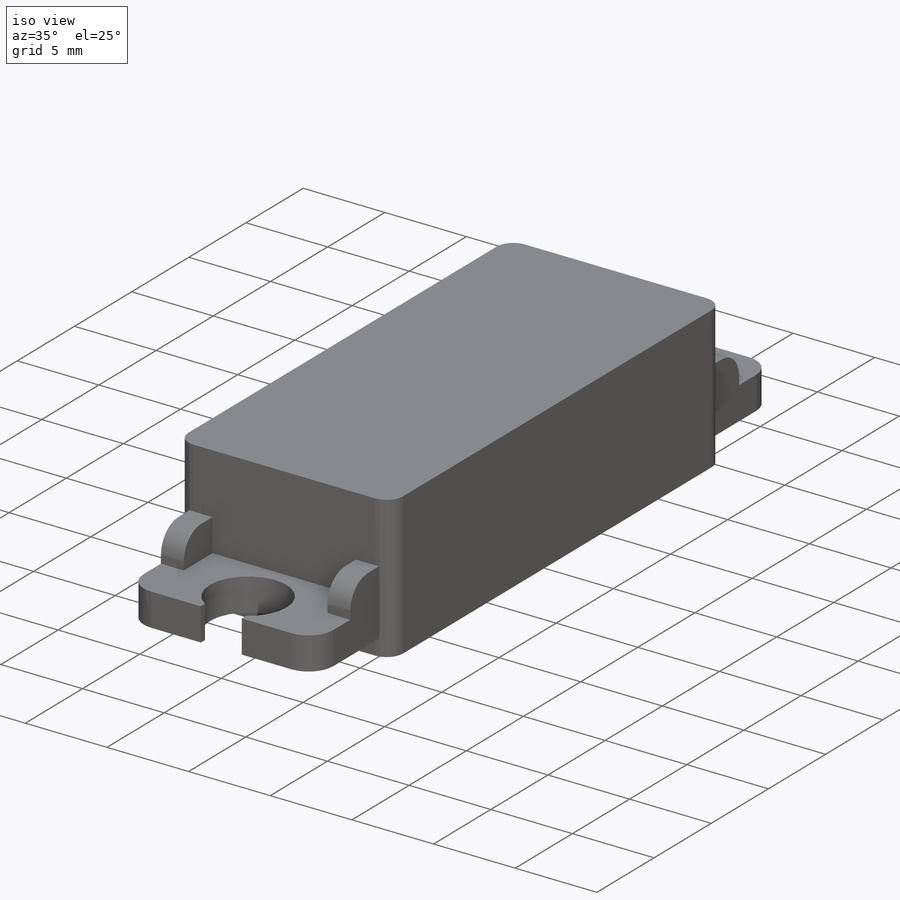
[diagram: iso view]
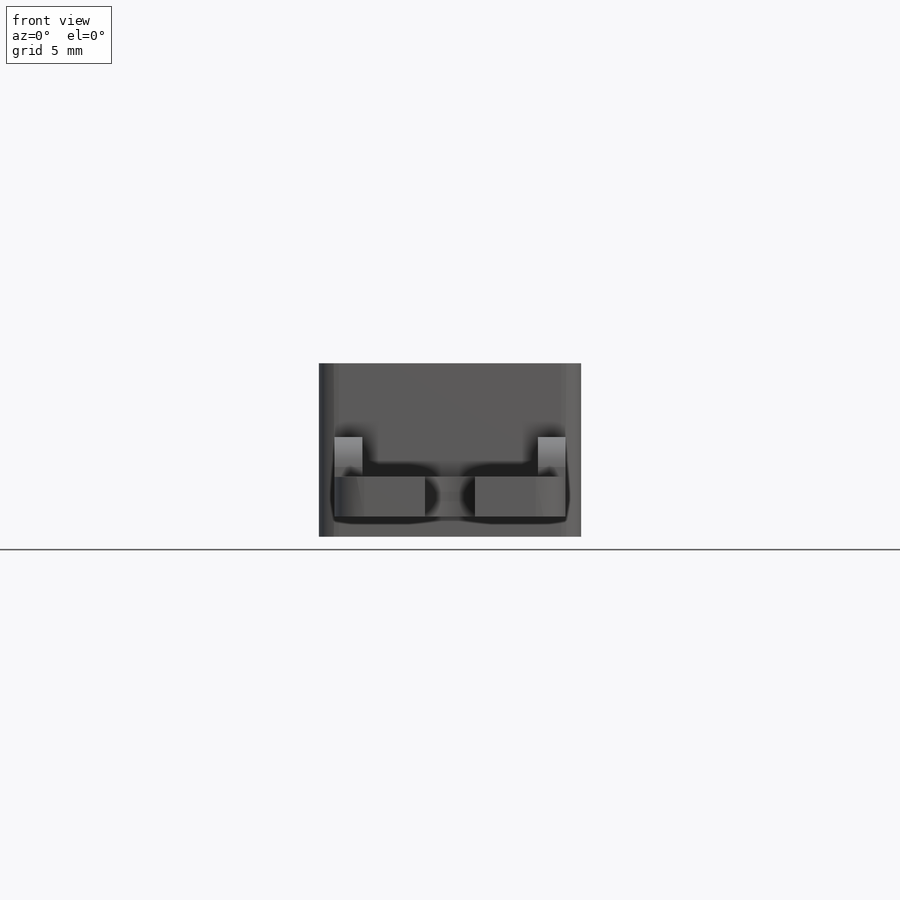
[diagram: front view]
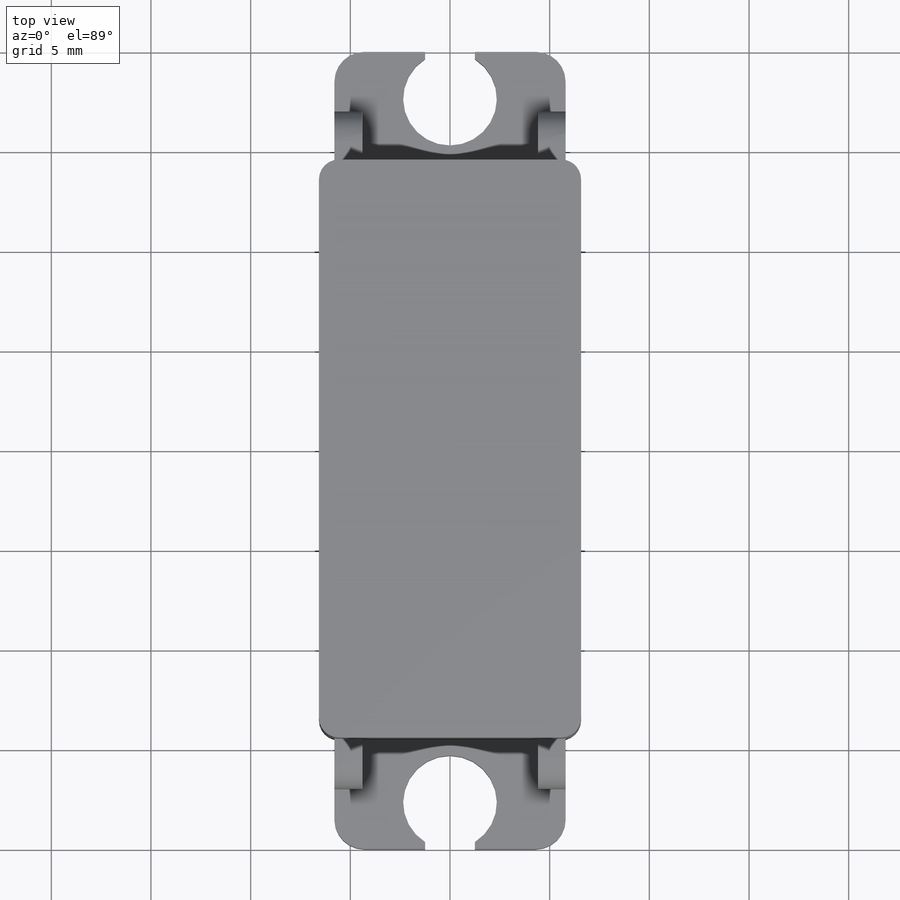
[diagram: top view]
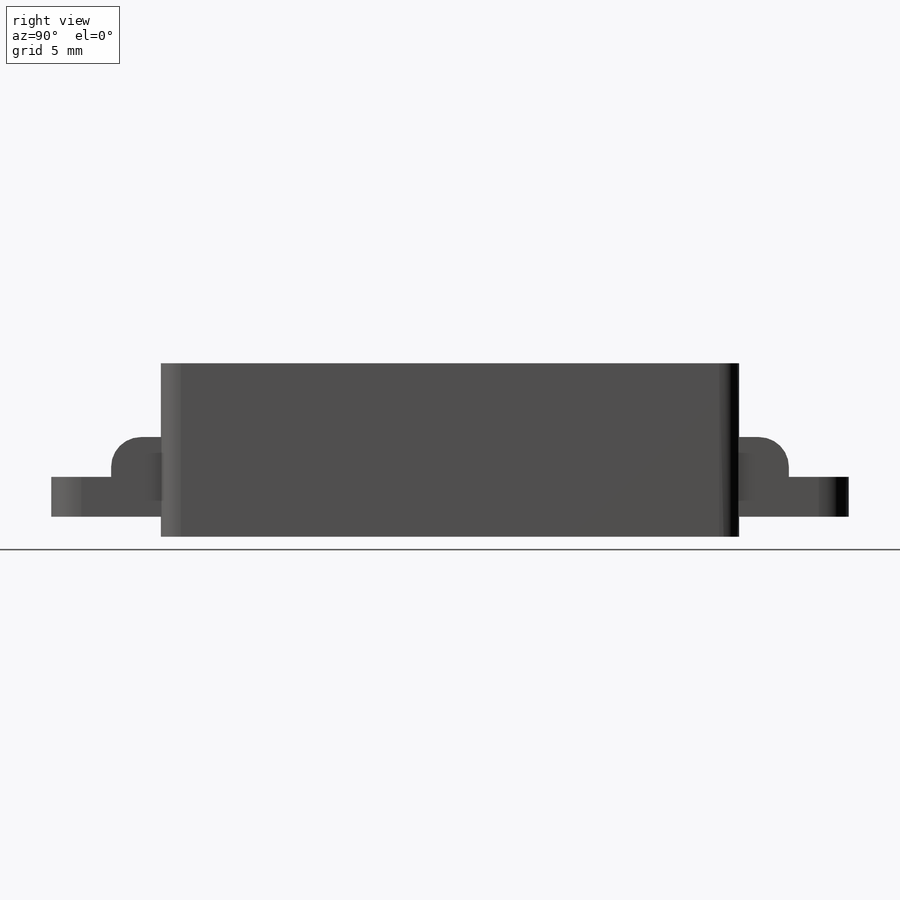
[diagram: right view]
SOLIDWORKS PART (.sldprt)
format: sldprt  version: not decoded by parser v0  size: 240,128 bytes
history: native  units: mm
features: sketch x4, extrude x3, fillet x3, mirror x2, material x1, cut_extrude x1 (+13 scaffold rows collapsed)
feature tree (27):
  scaffold x13  (default folders/planes/origin — collapsed)
  material  "Material <not specified>"
  sketch  "Sketch1"  dims[D1=13.15mm D2=29.0mm]
  extrude  "Boss-Extrude1"  Depth=8.7mm
  sketch  "Sketch2"  dims[D1=2.0mm D2=1.0mm D3=11.6mm]
  extrude  "Boss-Extrude2"  Depth=5.5mm
  sketch  "Sketch3"  dims[D1=4.7mm D2=17.653mm D3=2.5mm]
  cut_extrude  "Cut-Extrude2"  [1 undecoded]
  fillet  "Fillet1"  Radius=1.5mm
  sketch  "Sketch4"  dims[D1=1.4mm D2=2.5mm]
  extrude  "Boss-Extrude3"  Depth=2mm
  fillet  "Fillet3"  Radius=1.5mm
  mirror  "Mirror1"
  mirror  "Mirror2"
  fillet  "Fillet4"  Radius=1mm
decode coverage: 10 of 13 modeling features carry decoded parameters
note: 1 parameter value undecoded
note: suppression state not decoded; provenance and decode notes live in map.json
